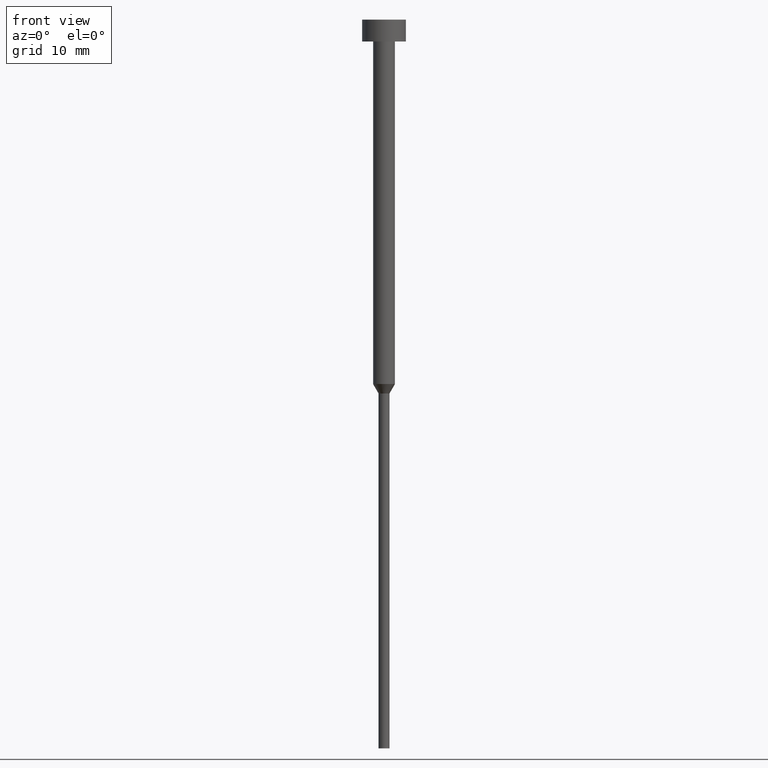
[diagram: clean part render]
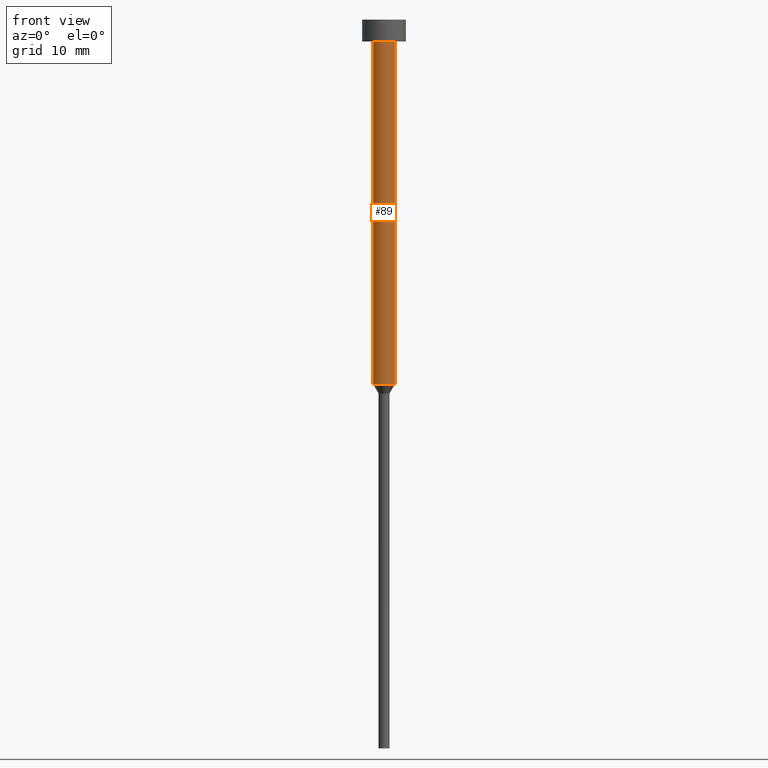
[diagram: same view with one face highlighted and labeled with its STEP entity id]
A machine part, front view. The second image highlights one B-rep face of the part: STEP entity #89.
In plain terms, the highlighted cylindrical surface (edge-blend (fillet) strip) has radius 1.5 mm, axis along (-0, -0, 1).
Its self-contained STEP definition (entity closure, byte-faithful):
#1 = AXIS2_PLACEMENT_3D ( 'NONE', #189, #262, #102 ) ;
#7 = CARTESIAN_POINT ( 'NONE',  ( 1.500000000000000000, 0.000000000000000000, 0.000000000000000000 ) ) ;
#8 = CARTESIAN_POINT ( 'NONE',  ( -1.500000000000000000, 1.836970198721029934E-16, 0.000000000000000000 ) ) ;
#22 = AXIS2_PLACEMENT_3D ( 'NONE', #336, #31, #33 ) ;
#27 = AXIS2_PLACEMENT_3D ( 'NONE', #44, #192, #154 ) ;
#29 = CIRCLE ( 'NONE', #27, 1.500000000000000000 ) ;
#31 = DIRECTION ( 'NONE',  ( -0.000000000000000000, -0.000000000000000000, 1.000000000000000000 ) ) ;
#33 = DIRECTION ( 'NONE',  ( 1.000000000000000000, 0.000000000000000000, 0.000000000000000000 ) ) ;
#41 = LINE ( 'NONE', #7, #248 ) ;
#44 = CARTESIAN_POINT ( 'NONE',  ( 0.000000000000000000, 0.000000000000000000, -50.00000000000000000 ) ) ;
#46 = VERTEX_POINT ( 'NONE', #234 ) ;
#54 = EDGE_CURVE ( 'NONE', #166, #46, #41, .T. ) ;
#89 = ADVANCED_FACE ( 'NONE', ( #236 ), #292, .T. ) ;
#100 = CARTESIAN_POINT ( 'NONE',  ( -1.500000000000000000, 1.836970198721029934E-16, -50.00000000000000000 ) ) ;
#102 = DIRECTION ( 'NONE',  ( 1.000000000000000000, 0.000000000000000000, 0.000000000000000000 ) ) ;
#149 = DIRECTION ( 'NONE',  ( -0.000000000000000000, -0.000000000000000000, 1.000000000000000000 ) ) ;
#150 = EDGE_LOOP ( 'NONE', ( #180, #273, #240, #323 ) ) ;
#154 = DIRECTION ( 'NONE',  ( 1.000000000000000000, 0.000000000000000000, 0.000000000000000000 ) ) ;
#166 = VERTEX_POINT ( 'NONE', #179 ) ;
#168 = VECTOR ( 'NONE', #235, 1000.000000000000000 ) ;
#179 = CARTESIAN_POINT ( 'NONE',  ( 1.500000000000000000, 0.000000000000000000, -50.00000000000000000 ) ) ;
#180 = ORIENTED_EDGE ( 'NONE', *, *, #278, .F. ) ;
#189 = CARTESIAN_POINT ( 'NONE',  ( 0.000000000000000000, 0.000000000000000000, 0.000000000000000000 ) ) ;
#192 = DIRECTION ( 'NONE',  ( -0.000000000000000000, -0.000000000000000000, 1.000000000000000000 ) ) ;
#207 = CARTESIAN_POINT ( 'NONE',  ( -1.500000000000000000, 1.836970198721029934E-16, -3.000000000000000444 ) ) ;
#219 = VERTEX_POINT ( 'NONE', #100 ) ;
#234 = CARTESIAN_POINT ( 'NONE',  ( 1.500000000000000000, 0.000000000000000000, -3.000000000000000444 ) ) ;
#235 = DIRECTION ( 'NONE',  ( -0.000000000000000000, -0.000000000000000000, 1.000000000000000000 ) ) ;
#236 = FACE_OUTER_BOUND ( 'NONE', #150, .T. ) ;
#237 = VERTEX_POINT ( 'NONE', #207 ) ;
#240 = ORIENTED_EDGE ( 'NONE', *, *, #54, .T. ) ;
#248 = VECTOR ( 'NONE', #149, 1000.000000000000000 ) ;
#256 = LINE ( 'NONE', #8, #168 ) ;
#262 = DIRECTION ( 'NONE',  ( -0.000000000000000000, -0.000000000000000000, 1.000000000000000000 ) ) ;
#273 = ORIENTED_EDGE ( 'NONE', *, *, #317, .T. ) ;
#278 = EDGE_CURVE ( 'NONE', #219, #237, #256, .T. ) ;
#292 = CYLINDRICAL_SURFACE ( 'NONE', #1, 1.500000000000000000 ) ;
#299 = EDGE_CURVE ( 'NONE', #237, #46, #303, .T. ) ;
#303 = CIRCLE ( 'NONE', #22, 1.500000000000000000 ) ;
#317 = EDGE_CURVE ( 'NONE', #219, #166, #29, .T. ) ;
#323 = ORIENTED_EDGE ( 'NONE', *, *, #299, .F. ) ;
#336 = CARTESIAN_POINT ( 'NONE',  ( 0.000000000000000000, 0.000000000000000000, -3.000000000000000444 ) ) ;